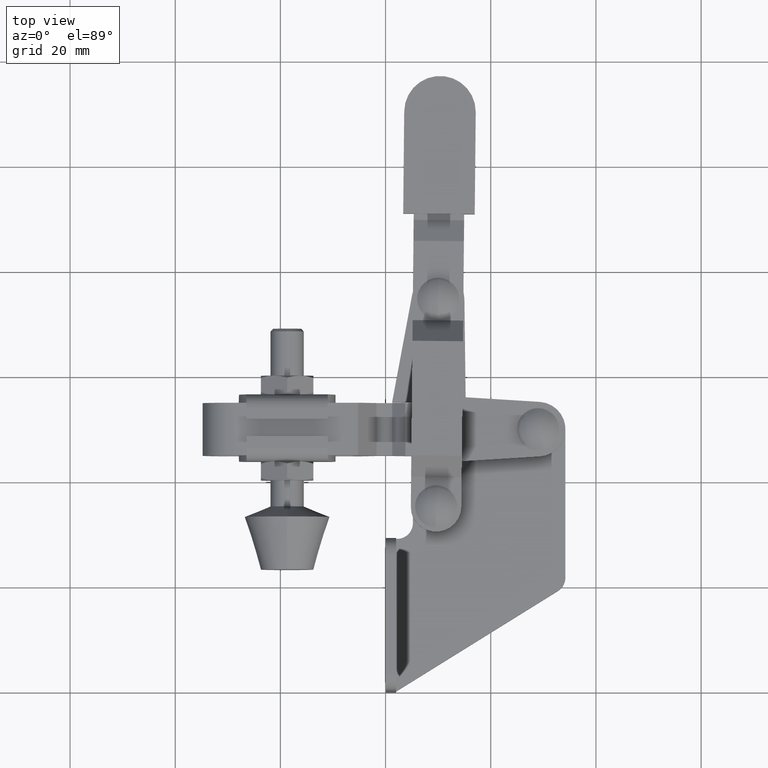
[diagram: clean part render]
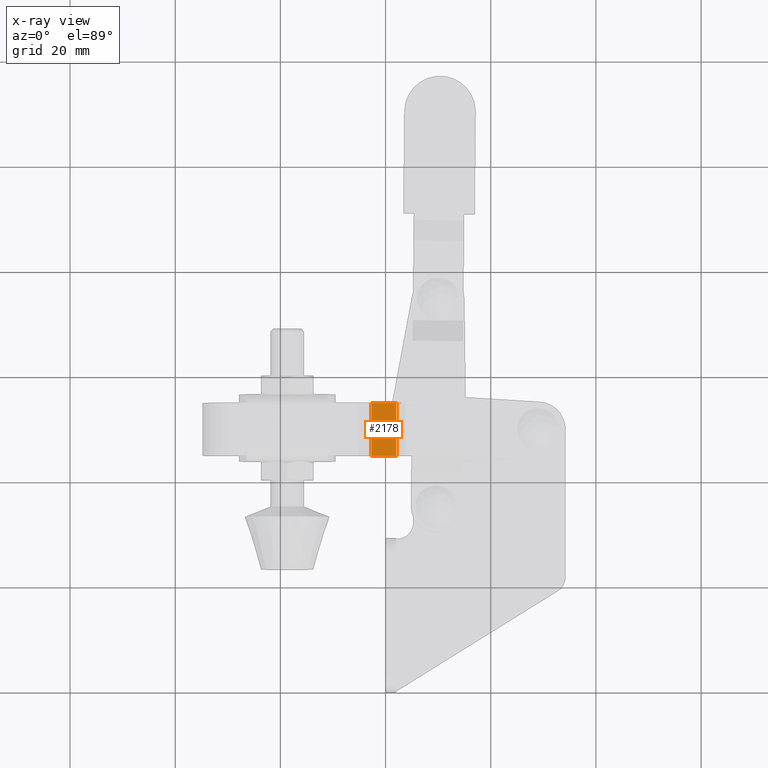
[diagram: x-ray — body ghosted, one internal face saturated and labeled with its STEP entity id]
A machine part, top view, then the same camera in x-ray: the body is ghosted and one INTERNAL B-rep face — a face not visible from any outside direction — is saturated and labeled: STEP entity #2178.
In plain terms, the highlighted planar face has unit normal (0, -0, -1).
Its self-contained STEP definition (entity closure, byte-faithful):
#213 = CARTESIAN_POINT ( 'NONE',  ( -2.670041666666539200, 56.10999999999992100, -4.999999999562338300E-005 ) ) ;
#492 = DIRECTION ( 'NONE',  ( 1.000000000000000000, 2.147262402607541000E-016, 5.169324899787199000E-018 ) ) ;
#831 = EDGE_CURVE ( 'NONE', #8927, #7697, #1521, .T. ) ;
#1100 = CARTESIAN_POINT ( 'NONE',  ( -34.79999999999984800, 54.82999999999991300, -4.999999999539908900E-005 ) ) ;
#1305 = EDGE_CURVE ( 'NONE', #7697, #7855, #4384, .T. ) ;
#1521 = LINE ( 'NONE', #213, #1894 ) ;
#1894 = VECTOR ( 'NONE', #5743, 1000.000000000000000 ) ;
#2178 = ADVANCED_FACE ( 'NONE', ( #5037 ), #5788, .F. ) ;
#2292 = AXIS2_PLACEMENT_3D ( 'NONE', #4188, #8917, #3396 ) ;
#3050 = CARTESIAN_POINT ( 'NONE',  ( 2.021502311122982800, 44.82999999999992700, -4.999999999504931800E-005 ) ) ;
#3089 = EDGE_CURVE ( 'NONE', #8927, #4187, #9625, .T. ) ;
#3092 = ORIENTED_EDGE ( 'NONE', *, *, #3089, .F. ) ;
#3229 = VECTOR ( 'NONE', #7463, 1000.000000000000000 ) ;
#3396 = DIRECTION ( 'NONE',  ( -1.000000000000000000, -2.147262402607541000E-016, -5.169324899787199000E-018 ) ) ;
#3548 = CARTESIAN_POINT ( 'NONE',  ( 9.223798960225515500, 44.82999999999992700, -4.999999999588895200E-005 ) ) ;
#3747 = VECTOR ( 'NONE', #492, 1000.000000000000000 ) ;
#4187 = VERTEX_POINT ( 'NONE', #8689 ) ;
#4188 = CARTESIAN_POINT ( 'NONE',  ( 9.223798960225515500, 56.10999999999992100, -4.999999999592187100E-005 ) ) ;
#4384 = LINE ( 'NONE', #3548, #3747 ) ;
#5037 = FACE_OUTER_BOUND ( 'NONE', #9176, .T. ) ;
#5307 = ORIENTED_EDGE ( 'NONE', *, *, #8921, .F. ) ;
#5743 = DIRECTION ( 'NONE',  ( 1.037039377982384500E-016, -1.000000000000000000, 2.919468386120115700E-018 ) ) ;
#5788 = PLANE ( 'NONE',  #2292 ) ;
#6025 = CARTESIAN_POINT ( 'NONE',  ( -2.670041666666539200, 44.82999999999992700, -4.999999999595043300E-005 ) ) ;
#6689 = CARTESIAN_POINT ( 'NONE',  ( -2.670041666666539200, 54.82999999999992000, -4.999999999542632300E-005 ) ) ;
#6843 = ORIENTED_EDGE ( 'NONE', *, *, #831, .T. ) ;
#6885 = CARTESIAN_POINT ( 'NONE',  ( 2.021502311122982800, 56.10999999999992100, -4.999999999595911300E-005 ) ) ;
#6914 = DIRECTION ( 'NONE',  ( 1.037039377982384700E-016, -1.000000000000000000, 2.919468386120116100E-018 ) ) ;
#6966 = LINE ( 'NONE', #6885, #9268 ) ;
#7463 = DIRECTION ( 'NONE',  ( 1.000000000000000000, 2.147262402607541000E-016, 5.169324899787199000E-018 ) ) ;
#7697 = VERTEX_POINT ( 'NONE', #6025 ) ;
#7855 = VERTEX_POINT ( 'NONE', #3050 ) ;
#7913 = ORIENTED_EDGE ( 'NONE', *, *, #1305, .T. ) ;
#8689 = CARTESIAN_POINT ( 'NONE',  ( 2.021502311122982800, 54.82999999999992000, -4.999999999595537300E-005 ) ) ;
#8917 = DIRECTION ( 'NONE',  ( 5.169324899787199800E-018, -2.919468386120110700E-018, -1.000000000000000000 ) ) ;
#8921 = EDGE_CURVE ( 'NONE', #4187, #7855, #6966, .T. ) ;
#8927 = VERTEX_POINT ( 'NONE', #6689 ) ;
#9176 = EDGE_LOOP ( 'NONE', ( #6843, #7913, #5307, #3092 ) ) ;
#9268 = VECTOR ( 'NONE', #6914, 1000.000000000000000 ) ;
#9625 = LINE ( 'NONE', #1100, #3229 ) ;